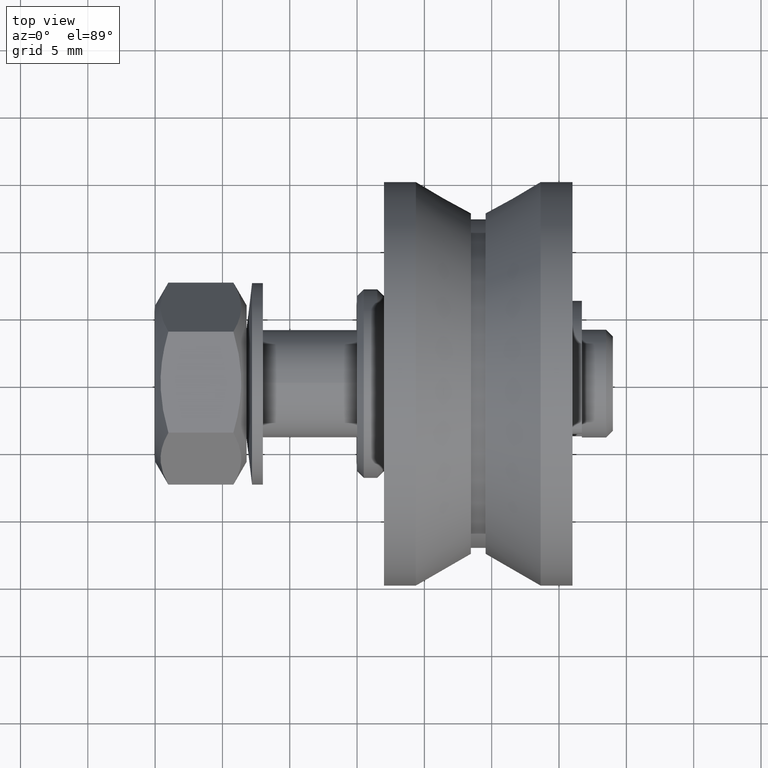
[diagram: clean part render]
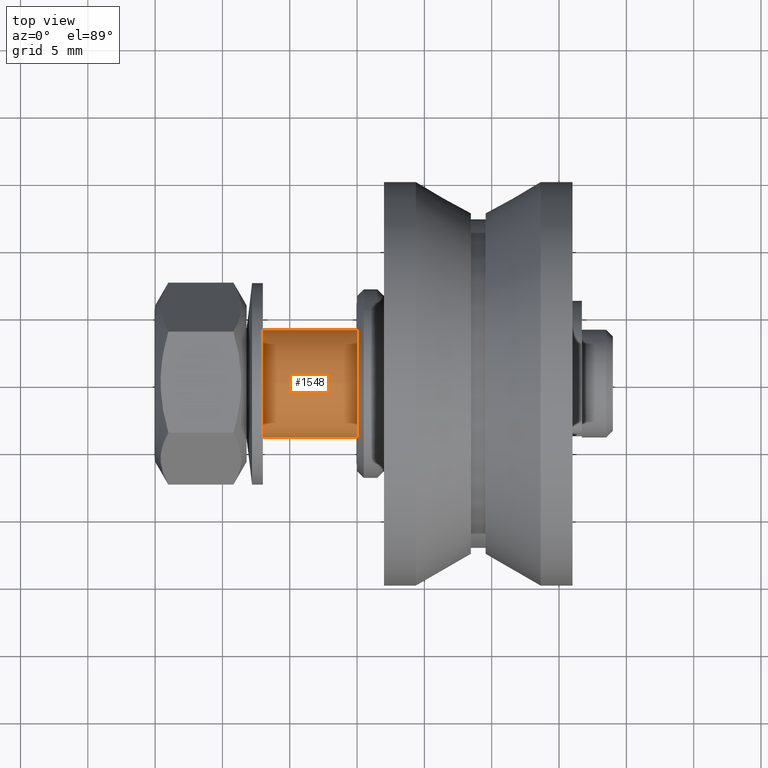
[diagram: same view with one face highlighted and labeled with its STEP entity id]
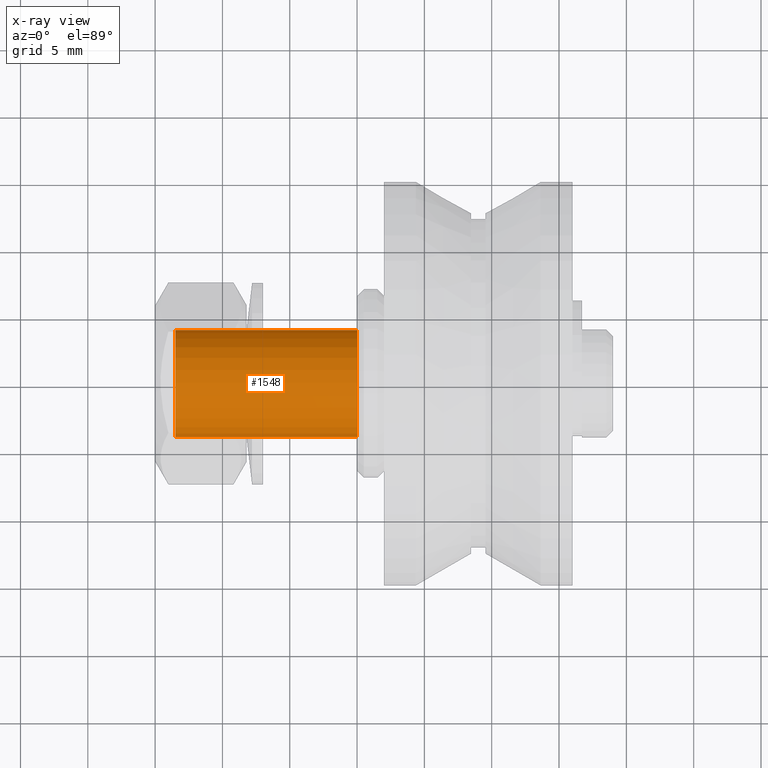
[diagram: x-ray of the same camera — body ghosted, the highlighted face saturated]
A machine part, top view. The second image highlights one B-rep face of the part: STEP entity #1548.
The next image is the same camera in x-ray: the body ghosted, the highlighted face saturated — about 0% of this face is hidden behind the body in this view.
In plain terms, the highlighted cylindrical surface (bore or boss wall) has radius 4 mm, axis along (-1, 0, 0).
Its self-contained STEP definition (entity closure, byte-faithful):
#137=CYLINDRICAL_SURFACE('',#1814,4.);
#202=FACE_OUTER_BOUND('',#305,.T.);
#305=EDGE_LOOP('',(#1222,#1223,#1224,#1225));
#439=LINE('',#2642,#557);
#557=VECTOR('',#2140,4.);
#642=CIRCLE('',#1810,4.);
#643=CIRCLE('',#1812,4.);
#756=VERTEX_POINT('',#2633);
#757=VERTEX_POINT('',#2636);
#925=EDGE_CURVE('',#756,#756,#642,.T.);
#926=EDGE_CURVE('',#757,#757,#643,.T.);
#929=EDGE_CURVE('',#757,#756,#439,.T.);
#1222=ORIENTED_EDGE('',*,*,#926,.F.);
#1223=ORIENTED_EDGE('',*,*,#929,.T.);
#1224=ORIENTED_EDGE('',*,*,#925,.F.);
#1225=ORIENTED_EDGE('',*,*,#929,.F.);
#1548=ADVANCED_FACE('',(#202),#137,.T.);
#1810=AXIS2_PLACEMENT_3D('',#2634,#2129,#2130);
#1812=AXIS2_PLACEMENT_3D('',#2637,#2133,#2134);
#1814=AXIS2_PLACEMENT_3D('',#2641,#2138,#2139);
#2129=DIRECTION('center_axis',(1.,0.,0.));
#2130=DIRECTION('ref_axis',(0.,0.,-1.));
#2133=DIRECTION('center_axis',(-1.,0.,0.));
#2134=DIRECTION('ref_axis',(0.,0.,-1.));
#2138=DIRECTION('center_axis',(-1.,0.,0.));
#2139=DIRECTION('ref_axis',(0.,0.,-1.));
#2140=DIRECTION('',(1.,0.,0.));
#2633=CARTESIAN_POINT('',(-2.14313189850787E-16,4.89858719658941E-16,4.));
#2634=CARTESIAN_POINT('Origin',(-2.14313189850787E-16,0.,0.));
#2636=CARTESIAN_POINT('',(-13.5,4.89858719658941E-16,4.));
#2637=CARTESIAN_POINT('Origin',(-13.5,0.,0.));
#2641=CARTESIAN_POINT('Origin',(-2.14313189850787E-16,0.,0.));
#2642=CARTESIAN_POINT('',(-2.14313189850787E-16,4.89858719658941E-16,4.));